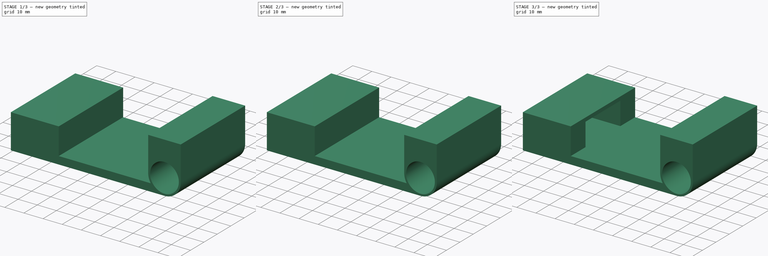
[diagram: build sequence overview — one tinted view per stage of 3, left to right]
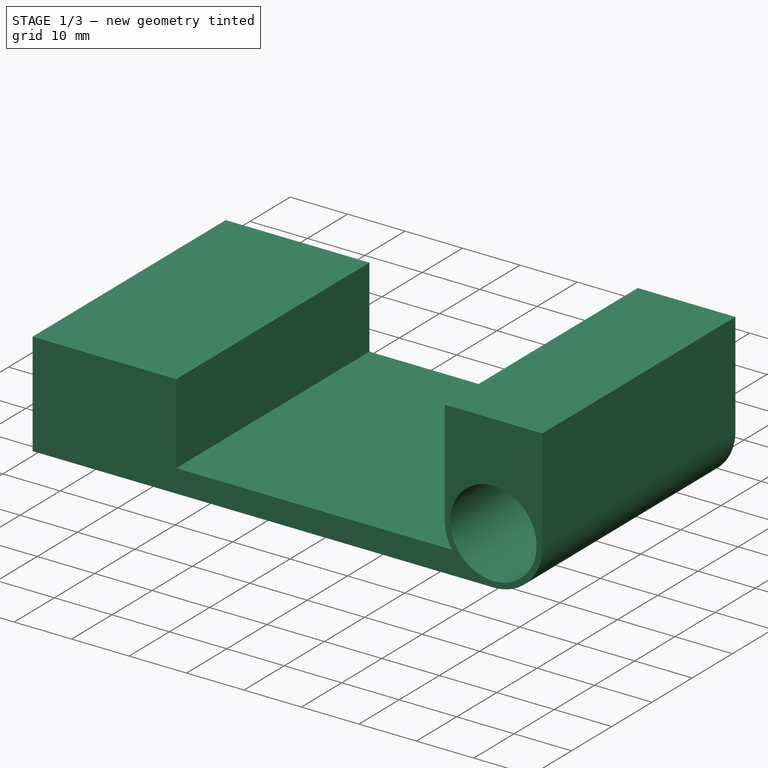
[diagram: stage 1 of 3 — iso view after this stage's code; geometry added in this stage tinted green]
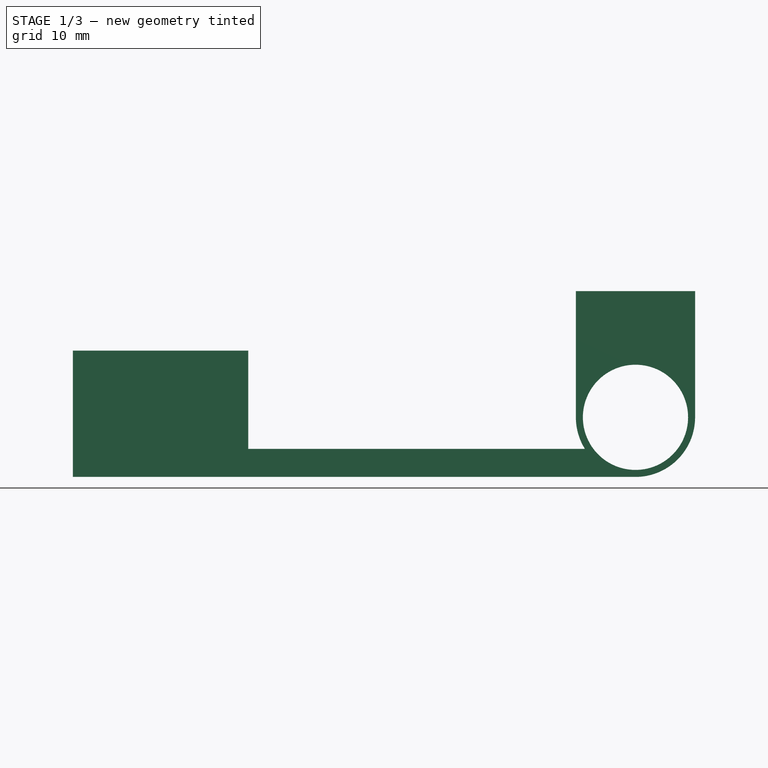
[diagram: stage 1 of 3 — front view after this stage's code; geometry added in this stage tinted green]
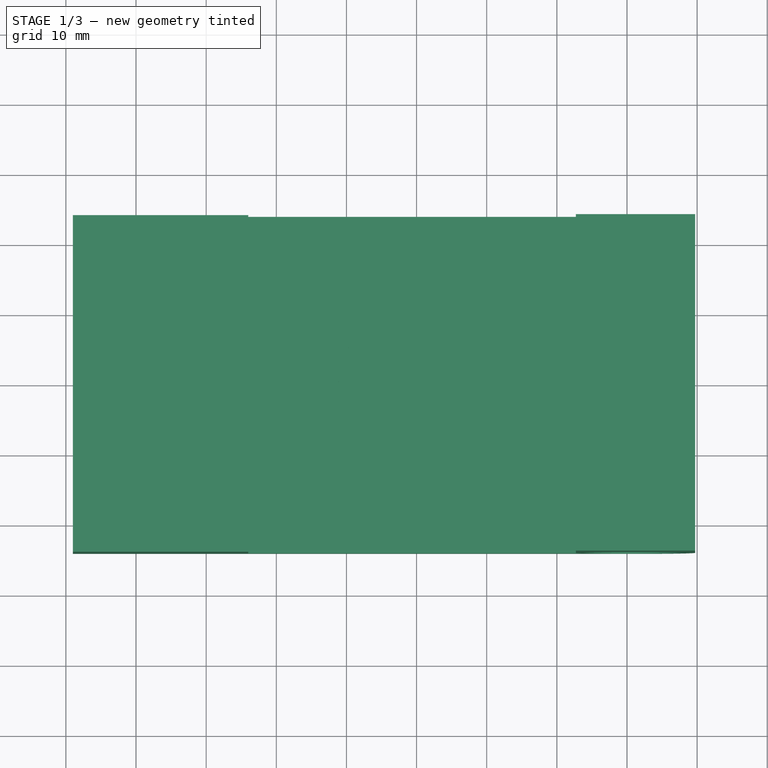
[diagram: stage 1 of 3 — top view after this stage's code; geometry added in this stage tinted green]
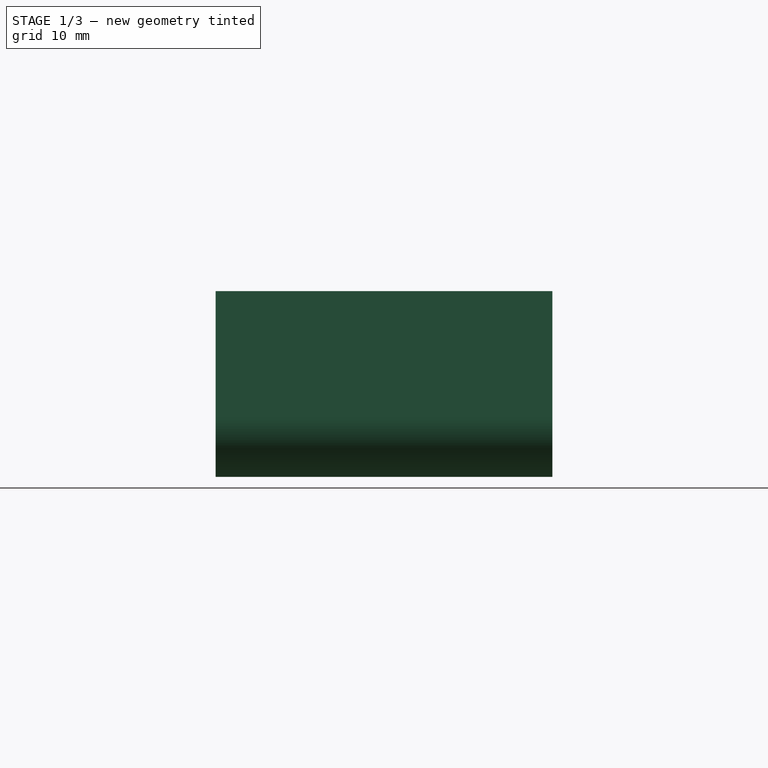
[diagram: stage 1 of 3 — right view after this stage's code; geometry added in this stage tinted green]
FCSTD DOCUMENT  (FreeCAD 0.16RUnknown)
Label: xAxisMotorMount
License: All rights reserved
LicenseURL: http://en.wikipedia.org/wiki/All_rights_reserved
objects: Sketcher::SketchObject×4, PartDesign::Pocket×4, PartDesign::Pad×1, PartDesign::PolarPattern×1
note: 15 computed .brp shape members not serialized (recipe doc carries the construction recipe); baked Part::Feature solids carry a one-line shape summary decoded from their .brp

FEATURE [Sketcher::SketchObject] Sketch
  Placement = pos=(0,0,0) rot=(1,0,0;1.5708rad)
  sketch-geometry (11):
    g0: LineSegment StartX=-49 StartY=18 StartZ=0 EndX=-49 EndY=0 EndZ=0
    g1: LineSegment StartX=-49 StartY=0 StartZ=0 EndX=31.2111 EndY=0 EndZ=0
    g2: LineSegment StartX=-49 StartY=18 StartZ=0 EndX=-24 EndY=18 EndZ=0
    g3: LineSegment StartX=-24 StartY=18 StartZ=0 EndX=-24 EndY=4 EndZ=0
    g4: LineSegment StartX=-24 StartY=4 StartZ=0 EndX=24 EndY=4 EndZ=0
    g5: Circle CenterX=31.2111 CenterY=8.5 CenterZ=0 NormalX=0 NormalY=0 NormalZ=1 Radius=7.5
    g6: LineSegment StartX=22.7111 StartY=8.5 StartZ=0 EndX=22.7111 EndY=26.5 EndZ=0
    g7: LineSegment StartX=22.7111 StartY=26.5 StartZ=0 EndX=39.7111 EndY=26.5 EndZ=0
    g8: LineSegment StartX=39.7111 StartY=26.5 StartZ=0 EndX=39.7111 EndY=8.5 EndZ=0
    g9: ArcOfCircle CenterX=31.2111 CenterY=8.5 CenterZ=0 NormalX=0 NormalY=0 NormalZ=1 Radius=8.5 StartAngle=4.71239 EndAngle=6.28319
    g10: ArcOfCircle CenterX=31.2111 CenterY=8.5 CenterZ=0 NormalX=0 NormalY=0 NormalZ=1 Radius=8.5 StartAngle=3.14159 EndAngle=3.6995
  constraints (33):
    c: Vertical(g0)
    c: Coincident(g0,g1)
    c: Horizontal(g1)
    c: Coincident(g2,g3)
    c: Coincident(g3,g4)
    c: Horizontal(g4)
    c: Horizontal(g2)
    c: Vertical(g3)
    c: DistanceY(g0,g0) = 18
    c: Coincident(g2,g0)
    c: DistanceY(g0,g3) = 4
    c: DistanceX(g2,g2) = 25
    c: DistanceX(g4,g4) = 48
    c: Radius(g5) = 7.5
    c: DistanceY(g-1,g0) = 18
    c: DistanceX(g2,g-1) = 24
    c: Vertical(g6)
    c: Coincident(g6,g7)
    c: Horizontal(g7)
    c: Coincident(g7,g8)
    c: Vertical(g8)
    c: Coincident(g9,g5)
    c: Coincident(g9,g8)
    c: Coincident(g10,g5)
    c: Coincident(g10,g4)
    c: Coincident(g10,g6)
    c: Radius(g10) = 8.5
    c: Radius(g9) = 8.5
    c: Tangent(g9,g8)
    c: Tangent(g9,g1)
    c: Tangent(g10,g6)
    c: DistanceY(g6,g6) = 18
    c: Coincident(g9,g1)
FEATURE [PartDesign::Pad] Pad
  Length = 48
  Length2 = 100
  Midplane = true
  Placement = pos=(0,0,0) rot=(1,0,0;1.5708rad)
  Sketch = -> Sketch
  Type = 0
FEATURE [PartDesign::Pocket] Pocket003
  Length = 5
  Placement = pos=(0,0,0) rot=(1,0,0;1.5708rad)
  Type = 0
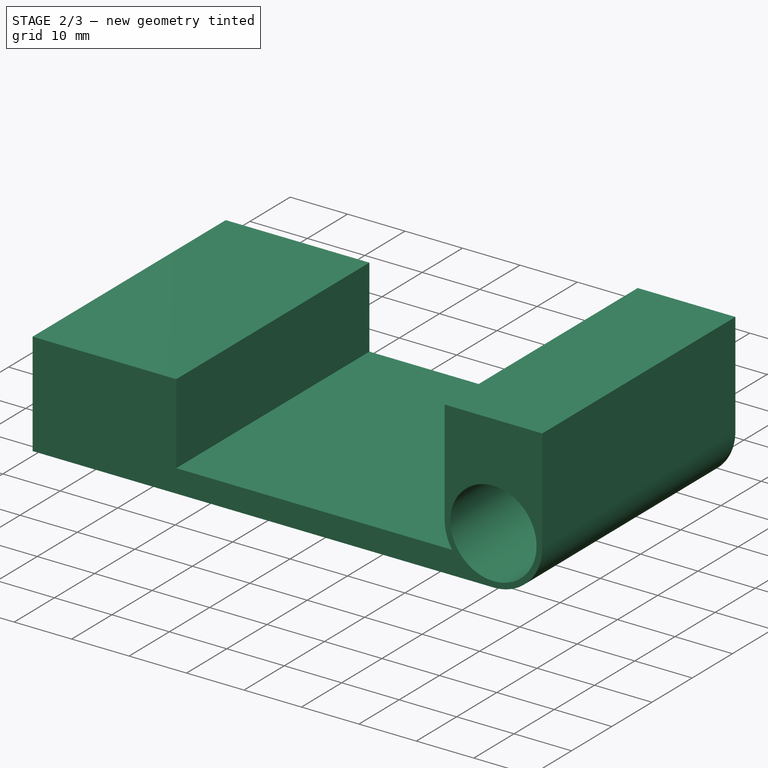
[diagram: stage 2 of 3 — iso view after this stage's code; geometry added in this stage tinted green]
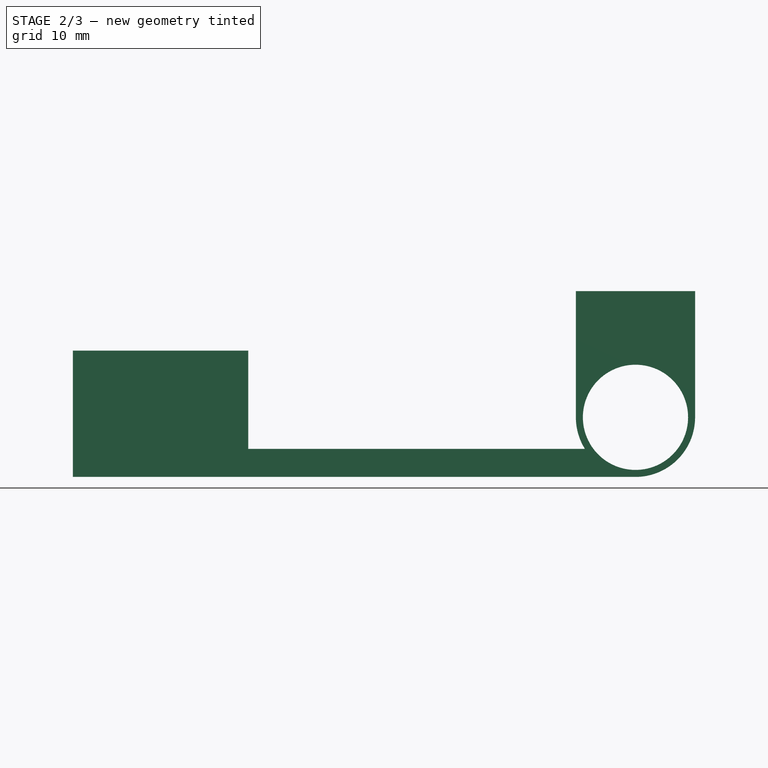
[diagram: stage 2 of 3 — front view after this stage's code; geometry added in this stage tinted green]
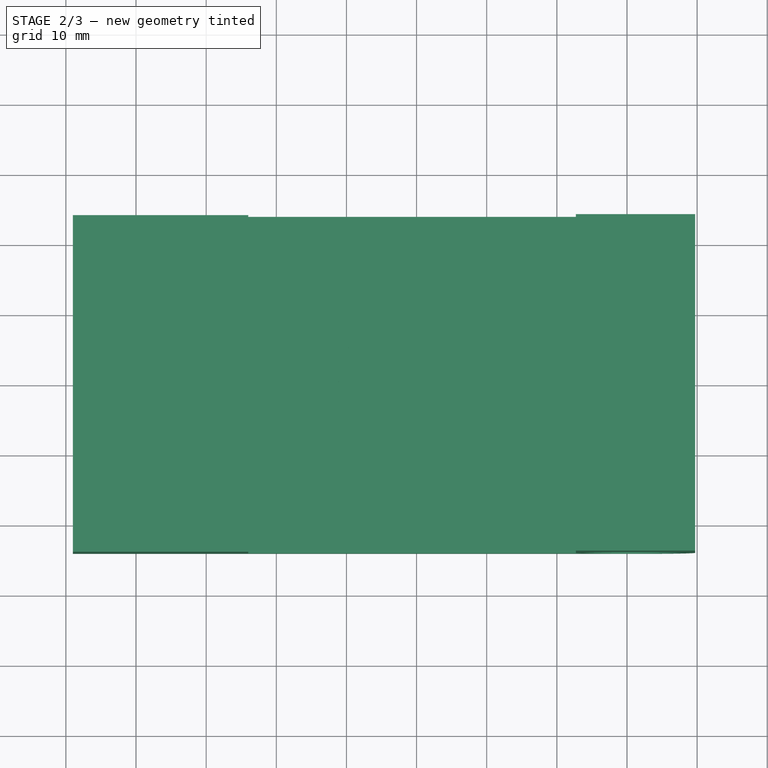
[diagram: stage 2 of 3 — top view after this stage's code; geometry added in this stage tinted green]
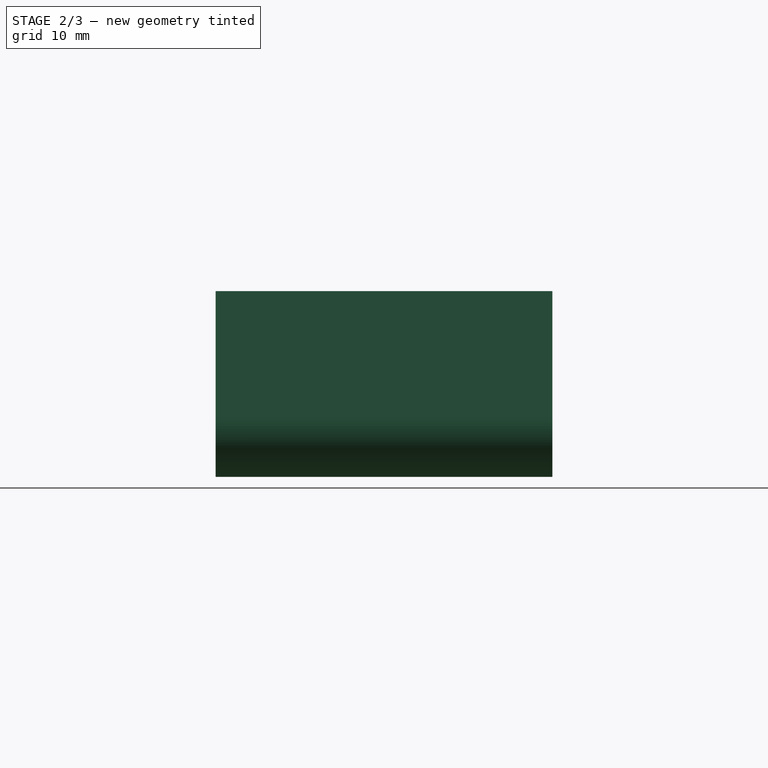
[diagram: stage 2 of 3 — right view after this stage's code; geometry added in this stage tinted green]
FEATURE [Sketcher::SketchObject] Sketch001
  Placement = pos=(0,0,18) rot=(0,0,1;3.14159rad)
  Support = -> Pad [Face4]
  sketch-geometry (2):
    g0: Circle CenterX=0 CenterY=0 CenterZ=0 NormalX=0 NormalY=0 NormalZ=1 Radius=11
    g1: Circle CenterX=-15.5 CenterY=15.5 CenterZ=0 NormalX=0 NormalY=0 NormalZ=1 Radius=1.5
  constraints (5):
    c: Coincident(g0,g-1)
    c: Radius(g0) = 11
    c: Radius(g1) = 1.5
    c: DistanceY(g-1,g1) = 15.5
    c: DistanceX(g1,g-1) = 15.5
FEATURE [PartDesign::Pocket] Pocket
  Length = 5
  Placement = pos=(0,0,0) rot=(1,0,0;1.5708rad)
  Sketch = -> Sketch001
  Type = 0
FEATURE [PartDesign::PolarPattern] PolarPattern
  Angle = 360
  Axis = -> Sketch001 [N_Axis]
  Occurrences = 2
  Originals = -> [Pocket]
  Placement = pos=(0,0,0) rot=(1,0,0;1.5708rad)
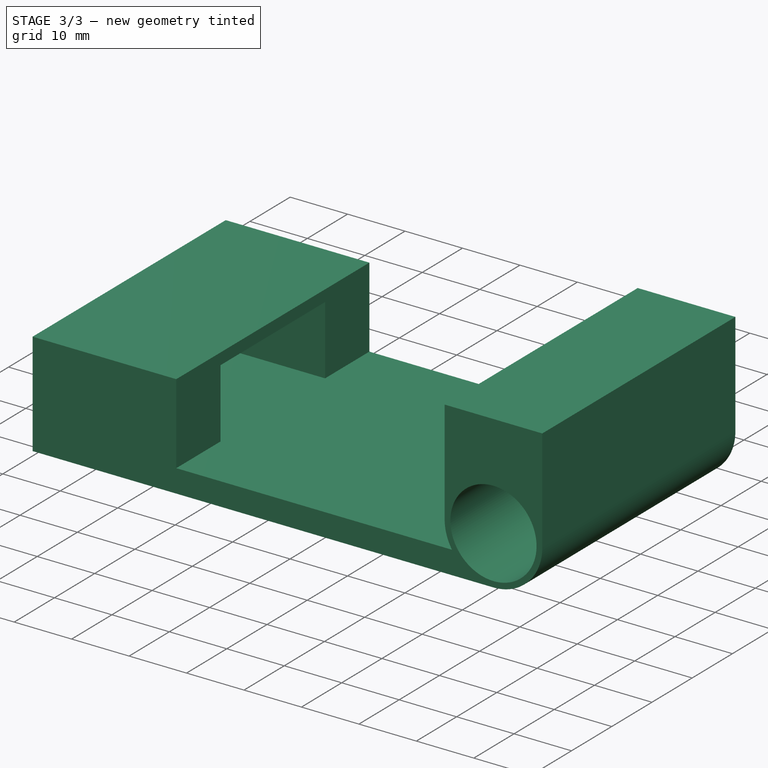
[diagram: stage 3 of 3 — iso view after this stage's code; geometry added in this stage tinted green]
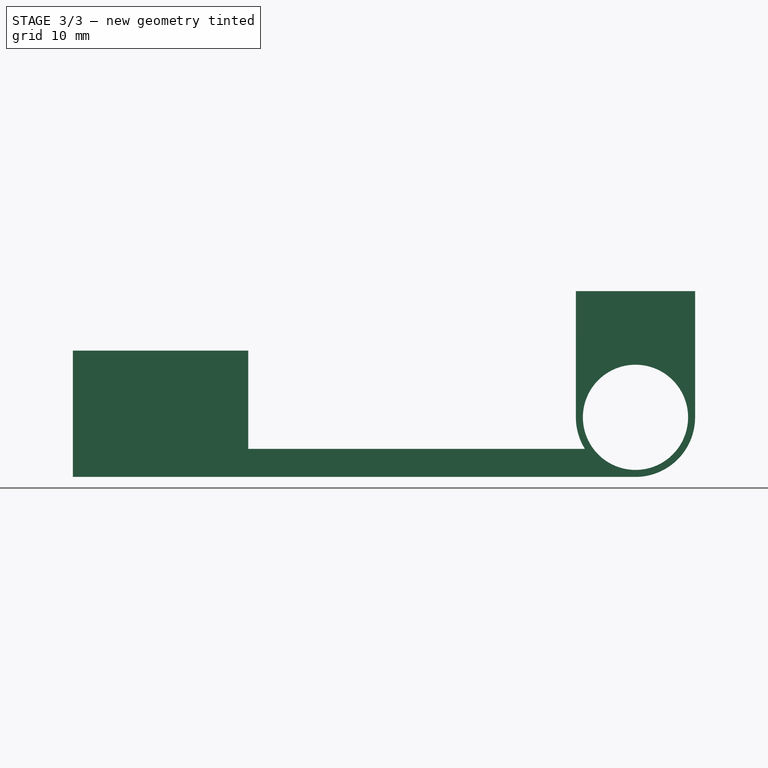
[diagram: stage 3 of 3 — front view after this stage's code; geometry added in this stage tinted green]
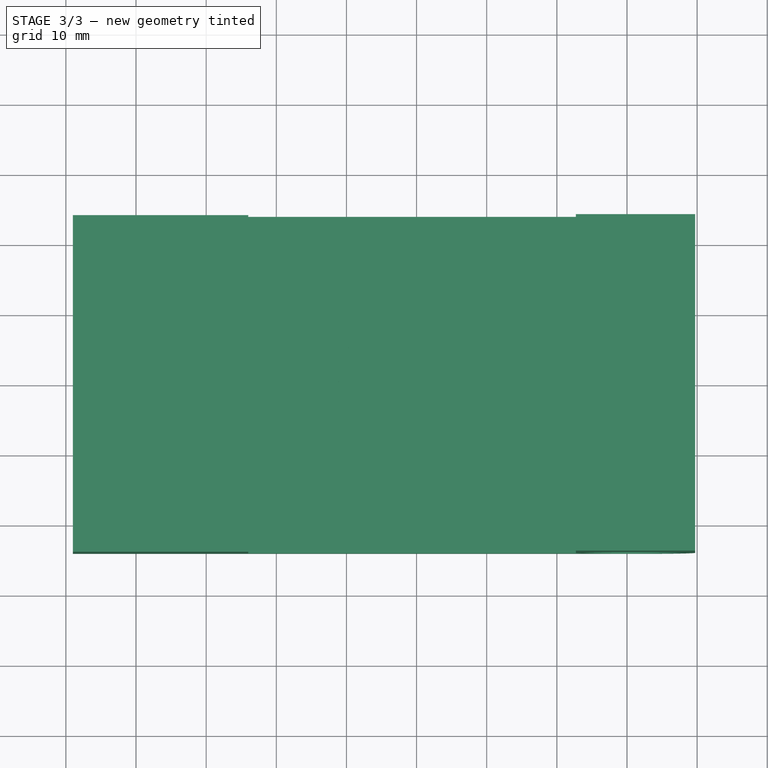
[diagram: stage 3 of 3 — top view after this stage's code; geometry added in this stage tinted green]
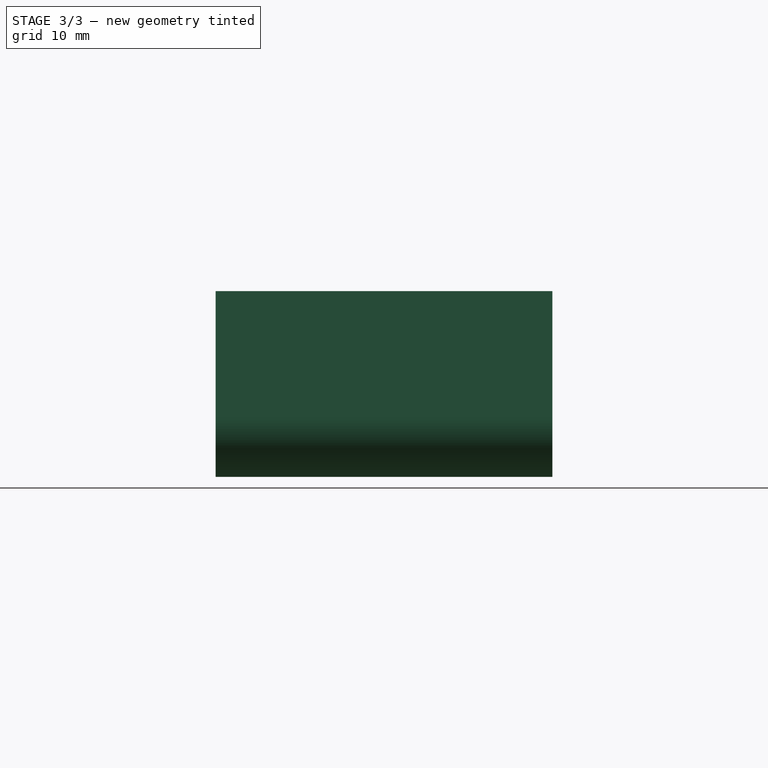
[diagram: stage 3 of 3 — right view after this stage's code; geometry added in this stage tinted green]
FEATURE [Sketcher::SketchObject] Sketch002
  Placement = pos=(-49,0,0) rot=(0.707107,0,-0.707107;3.14159rad)
  Support = -> PolarPattern [Face1]
  sketch-geometry (4):
    g0: LineSegment StartX=-16 StartY=-13 StartZ=0 EndX=-4 EndY=-13 EndZ=0
    g1: LineSegment StartX=-4 StartY=-13 StartZ=0 EndX=-4 EndY=13 EndZ=0
    g2: LineSegment StartX=-4 StartY=13 StartZ=0 EndX=-16 EndY=13 EndZ=0
    g3: LineSegment StartX=-16 StartY=13 StartZ=0 EndX=-16 EndY=-13 EndZ=0
  constraints (12):
    c: Coincident(g0,g1)
    c: Coincident(g1,g2)
    c: Coincident(g2,g3)
    c: Coincident(g3,g0)
    c: Horizontal(g0)
    c: Horizontal(g2)
    c: Vertical(g1)
    c: Vertical(g3)
    c: DistanceY(g3,g3) = 26
    c: DistanceX(g0,g0) = 12
    c: DistanceX(g0,g-1) = 4
    c: DistanceY(g0,g-1) = 13
FEATURE [PartDesign::Pocket] Pocket001
  Length = 25
  Placement = pos=(0,0,0) rot=(1,0,0;1.5708rad)
  Sketch = -> Sketch002
  Type = 0
FEATURE [Sketcher::SketchObject] Sketch004
  Placement = pos=(-49,0,0) rot=(0.707107,0,-0.707107;3.14159rad)
  Support = -> Pocket001 [Face10]
  sketch-geometry (2):
    g0: Circle CenterX=-10 CenterY=-18 CenterZ=0 NormalX=0 NormalY=0 NormalZ=1 Radius=4
    g1: Circle CenterX=-10 CenterY=18 CenterZ=0 NormalX=0 NormalY=0 NormalZ=1 Radius=4
  constraints (5):
    c: Equal(g0,g1)
    c: Symmetric(g0,g1,g-1)
    c: Radius(g0) = 4
    c: DistanceX(g0,g-1) = 10
    c: DistanceY(g0,g-1) = 18
FEATURE [PartDesign::Pocket] Pocket002
  Length = 5
  Placement = pos=(0,0,0) rot=(1,0,0;1.5708rad)
  Sketch = -> Sketch004
  Type = 0
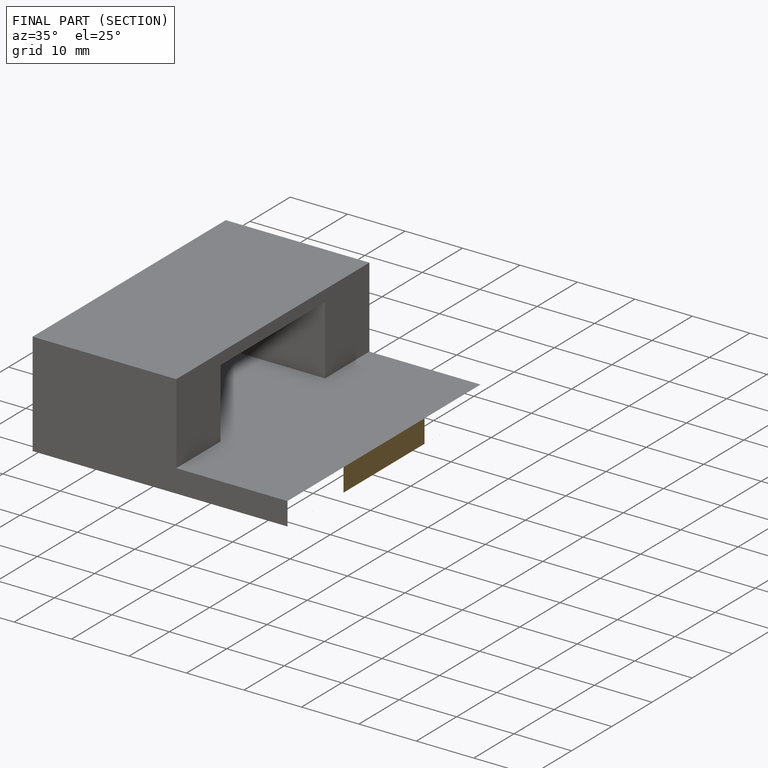
[diagram: finished part — half-section view (interior)]
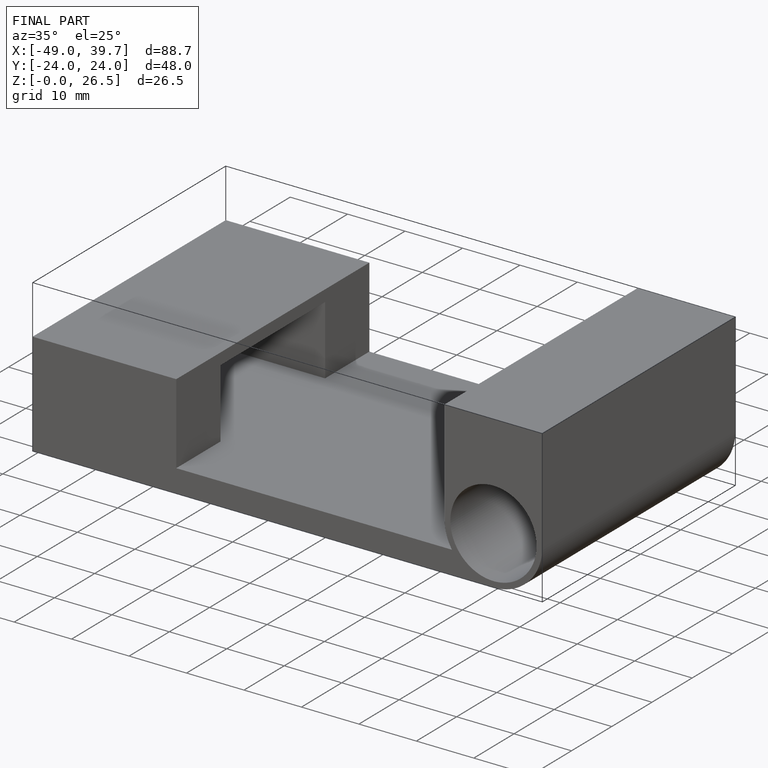
[diagram: finished part — iso view with bounding-box wireframe]
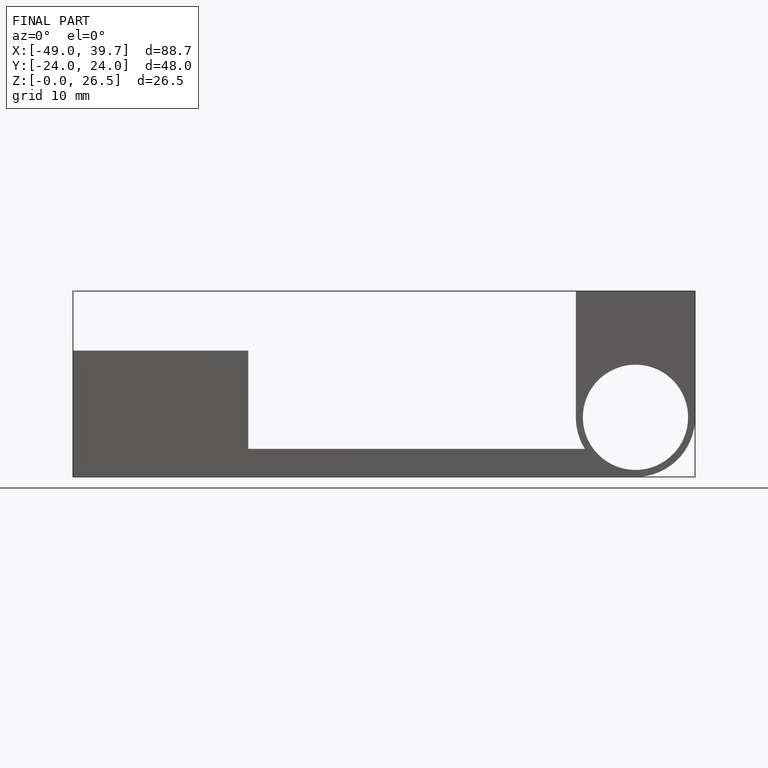
[diagram: finished part — front view with bounding-box wireframe]
